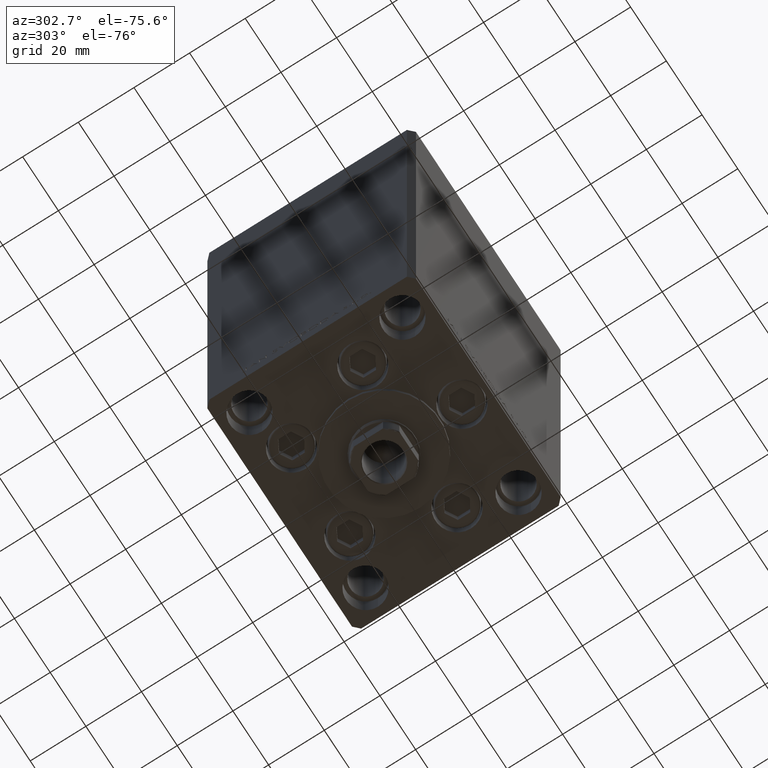
[diagram: clean part render]
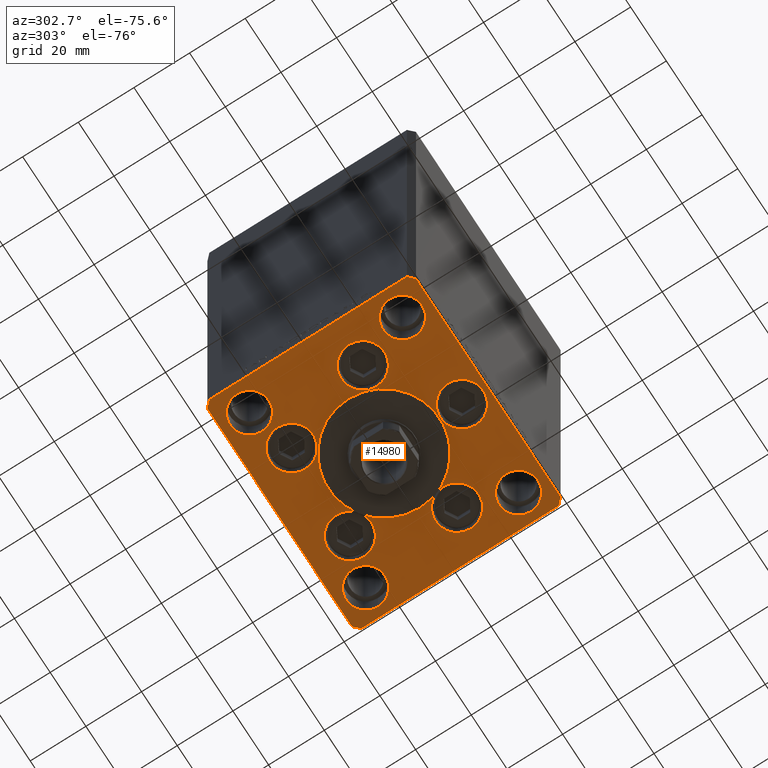
[diagram: same view with one face highlighted and labeled with its STEP entity id]
A machine part, auxiliary view. The second image highlights one B-rep face of the part: STEP entity #14980.
In plain terms, the highlighted planar face has unit normal (0, 0, -1).
Its self-contained STEP definition (entity closure, byte-faithful):
#356 = CIRCLE ( 'NONE', #43329, 7.750000000000000000 ) ;
#698 = CARTESIAN_POINT ( 'NONE',  ( -40.50000000000000000, 37.49999999999997158, 0.000000000000000000 ) ) ;
#1001 = AXIS2_PLACEMENT_3D ( 'NONE', #16255, #16506, #46876 ) ;
#1036 = ORIENTED_EDGE ( 'NONE', *, *, #20593, .F. ) ;
#1134 = CIRCLE ( 'NONE', #29794, 6.999999999999999112 ) ;
#1165 = EDGE_CURVE ( 'NONE', #1169, #23687, #14451, .T. ) ;
#1169 = VERTEX_POINT ( 'NONE', #18341 ) ;
#1642 = EDGE_CURVE ( 'NONE', #34296, #22308, #39171, .T. ) ;
#1661 = DIRECTION ( 'NONE',  ( 1.000000000000000000, 0.000000000000000000, 0.000000000000000000 ) ) ;
#1671 = EDGE_CURVE ( 'NONE', #28546, #29074, #45514, .T. ) ;
#1858 = LINE ( 'NONE', #2108, #31573 ) ;
#1912 = CARTESIAN_POINT ( 'NONE',  ( 32.50000000000000000, 27.49999999999999645, 0.000000000000000000 ) ) ;
#1974 = VERTEX_POINT ( 'NONE', #32973 ) ;
#2108 = CARTESIAN_POINT ( 'NONE',  ( -42.50000000000000711, 35.50000000000000000, 0.000000000000000000 ) ) ;
#2748 = DIRECTION ( 'NONE',  ( 1.000000000000000000, 0.000000000000000000, 0.000000000000000000 ) ) ;
#3086 = LINE ( 'NONE', #41675, #3211 ) ;
#3211 = VECTOR ( 'NONE', #7066, 1000.000000000000000 ) ;
#3472 = CARTESIAN_POINT ( 'NONE',  ( -32.50000000000000000, -27.50000000000000355, 0.000000000000000000 ) ) ;
#3995 = CARTESIAN_POINT ( 'NONE',  ( -42.50000000000000000, -35.50000000000004263, 0.000000000000000000 ) ) ;
#4089 = ORIENTED_EDGE ( 'NONE', *, *, #45117, .F. ) ;
#4255 = ORIENTED_EDGE ( 'NONE', *, *, #16487, .F. ) ;
#4271 = AXIS2_PLACEMENT_3D ( 'NONE', #18307, #23027, #30495 ) ;
#4290 = EDGE_CURVE ( 'NONE', #45163, #43109, #36307, .T. ) ;
#4315 = VECTOR ( 'NONE', #9255, 1000.000000000000000 ) ;
#4535 = EDGE_CURVE ( 'NONE', #1974, #34121, #28076, .T. ) ;
#4645 = VERTEX_POINT ( 'NONE', #11526 ) ;
#4926 = CARTESIAN_POINT ( 'NONE',  ( 0.000000000000000000, -28.00000000000000000, 0.000000000000000000 ) ) ;
#5023 = VECTOR ( 'NONE', #23163, 1000.000000000000000 ) ;
#5063 = CARTESIAN_POINT ( 'NONE',  ( 40.50000000000001421, -37.49999999999992184, 0.000000000000000000 ) ) ;
#5481 = CARTESIAN_POINT ( 'NONE',  ( 0.000000000000000000, 0.000000000000000000, 0.000000000000000000 ) ) ;
#5635 = VERTEX_POINT ( 'NONE', #31462 ) ;
#5731 = DIRECTION ( 'NONE',  ( 1.000000000000000000, 0.000000000000000000, 0.000000000000000000 ) ) ;
#5808 = VERTEX_POINT ( 'NONE', #11959 ) ;
#5924 = CIRCLE ( 'NONE', #20254, 6.999999999999999112 ) ;
#6092 = VERTEX_POINT ( 'NONE', #25124 ) ;
#7066 = DIRECTION ( 'NONE',  ( -0.7071067811865524577, 0.7071067811865426878, 0.000000000000000000 ) ) ;
#7155 = CARTESIAN_POINT ( 'NONE',  ( -40.50000000000000000, 37.49999999999997158, 0.000000000000000000 ) ) ;
#7370 = DIRECTION ( 'NONE',  ( 0.000000000000000000, 0.000000000000000000, 1.000000000000000000 ) ) ;
#7618 = DIRECTION ( 'NONE',  ( 0.000000000000000000, 0.000000000000000000, 1.000000000000000000 ) ) ;
#8025 = EDGE_LOOP ( 'NONE', ( #31431, #15460 ) ) ;
#8128 = DIRECTION ( 'NONE',  ( -0.7071067811865536790, -0.7071067811865414665, 0.000000000000000000 ) ) ;
#9089 = VERTEX_POINT ( 'NONE', #16302 ) ;
#9103 = VECTOR ( 'NONE', #47894, 1000.000000000000000 ) ;
#9255 = DIRECTION ( 'NONE',  ( 0.7071067811865487940, -0.7071067811865463515, 0.000000000000000000 ) ) ;
#9332 = DIRECTION ( 'NONE',  ( 9.773090005503134168E-17, -1.000000000000000000, 0.000000000000000000 ) ) ;
#9341 = CARTESIAN_POINT ( 'NONE',  ( 32.50000000000000000, -27.50000000000000355, 0.000000000000000000 ) ) ;
#9474 = CARTESIAN_POINT ( 'NONE',  ( 0.000000000000000000, -28.00000000000000000, 0.000000000000000000 ) ) ;
#10237 = AXIS2_PLACEMENT_3D ( 'NONE', #4926, #39805, #12655 ) ;
#10437 = FACE_BOUND ( 'NONE', #40850, .T. ) ;
#10528 = CIRCLE ( 'NONE', #1001, 7.750000000000000000 ) ;
#10736 = EDGE_CURVE ( 'NONE', #6092, #9089, #5924, .T. ) ;
#10870 = CARTESIAN_POINT ( 'NONE',  ( 8.572913342905442491, 22.74999999999999289, 0.000000000000000000 ) ) ;
#10893 = VERTEX_POINT ( 'NONE', #26299 ) ;
#11192 = VERTEX_POINT ( 'NONE', #34873 ) ;
#11370 = DIRECTION ( 'NONE',  ( 0.000000000000000000, 0.000000000000000000, 1.000000000000000000 ) ) ;
#11526 = CARTESIAN_POINT ( 'NONE',  ( 20.00000000000000000, -4.489600305612522259E-15, 0.000000000000000000 ) ) ;
#11597 = DIRECTION ( 'NONE',  ( 1.000000000000000000, 0.000000000000000000, 0.000000000000000000 ) ) ;
#11645 = ORIENTED_EDGE ( 'NONE', *, *, #37109, .F. ) ;
#11958 = ORIENTED_EDGE ( 'NONE', *, *, #10736, .F. ) ;
#11959 = CARTESIAN_POINT ( 'NONE',  ( 42.50000000000000711, -35.49999999999992895, 0.000000000000000000 ) ) ;
#11988 = EDGE_CURVE ( 'NONE', #13707, #5635, #356, .T. ) ;
#12088 = CIRCLE ( 'NONE', #35970, 7.750000000000000000 ) ;
#12301 = EDGE_LOOP ( 'NONE', ( #48106, #4089 ) ) ;
#12615 = CIRCLE ( 'NONE', #10237, 7.750000000000000000 ) ;
#12652 = ORIENTED_EDGE ( 'NONE', *, *, #42414, .T. ) ;
#12655 = DIRECTION ( 'NONE',  ( 1.000000000000000000, 0.000000000000000000, 0.000000000000000000 ) ) ;
#12712 = DIRECTION ( 'NONE',  ( 1.000000000000000000, 0.000000000000000000, 0.000000000000000000 ) ) ;
#12810 = ORIENTED_EDGE ( 'NONE', *, *, #39430, .F. ) ;
#13382 = CARTESIAN_POINT ( 'NONE',  ( 39.50000000000000000, 27.49999999999999645, 0.000000000000000000 ) ) ;
#13444 = CIRCLE ( 'NONE', #44430, 7.750000000000000000 ) ;
#13707 = VERTEX_POINT ( 'NONE', #31931 ) ;
#13712 = AXIS2_PLACEMENT_3D ( 'NONE', #48472, #7618, #11597 ) ;
#13944 = FACE_BOUND ( 'NONE', #18005, .T. ) ;
#14068 = CARTESIAN_POINT ( 'NONE',  ( 18.64865316429777664, -9.333333333333328596, 0.000000000000000000 ) ) ;
#14264 = CARTESIAN_POINT ( 'NONE',  ( 40.50000000000000711, 37.50000000000000711, 0.000000000000000000 ) ) ;
#14340 = CARTESIAN_POINT ( 'NONE',  ( 24.07291334290544071, 22.74999999999999289, 0.000000000000000000 ) ) ;
#14451 = CIRCLE ( 'NONE', #13712, 7.750000000000000000 ) ;
#14980 = ADVANCED_FACE ( 'NONE', ( #21658, #24678, #44556, #13944, #29376, #47812, #47572, #29141, #25175, #10437, #44324 ), #40357, .T. ) ;
#15460 = ORIENTED_EDGE ( 'NONE', *, *, #1671, .F. ) ;
#15498 = VERTEX_POINT ( 'NONE', #18000 ) ;
#15954 = CARTESIAN_POINT ( 'NONE',  ( -24.07291334290544071, 22.74999999999999289, 0.000000000000000000 ) ) ;
#16023 = LINE ( 'NONE', #5063, #43930 ) ;
#16255 = CARTESIAN_POINT ( 'NONE',  ( 16.32291334290544071, 22.74999999999999289, 0.000000000000000000 ) ) ;
#16276 = DIRECTION ( 'NONE',  ( 1.000000000000000000, 0.000000000000000000, 0.000000000000000000 ) ) ;
#16302 = CARTESIAN_POINT ( 'NONE',  ( -39.50000000000000000, -27.50000000000000355, 0.000000000000000000 ) ) ;
#16487 = EDGE_CURVE ( 'NONE', #22308, #34296, #25161, .T. ) ;
#16506 = DIRECTION ( 'NONE',  ( 0.000000000000000000, 0.000000000000000000, 1.000000000000000000 ) ) ;
#16648 = DIRECTION ( 'NONE',  ( 0.000000000000000000, 0.000000000000000000, 1.000000000000000000 ) ) ;
#16657 = ORIENTED_EDGE ( 'NONE', *, *, #46316, .T. ) ;
#16916 = EDGE_CURVE ( 'NONE', #5808, #40444, #32604, .T. ) ;
#17280 = LINE ( 'NONE', #14264, #9103 ) ;
#17394 = ORIENTED_EDGE ( 'NONE', *, *, #23101, .F. ) ;
#18000 = CARTESIAN_POINT ( 'NONE',  ( 7.750000000000000000, -28.00000000000000000, 0.000000000000000000 ) ) ;
#18005 = EDGE_LOOP ( 'NONE', ( #34060, #22861 ) ) ;
#18224 = CIRCLE ( 'NONE', #20631, 7.750000000000000000 ) ;
#18307 = CARTESIAN_POINT ( 'NONE',  ( -26.39865316429777664, -9.333333333333330373, 0.000000000000000000 ) ) ;
#18341 = CARTESIAN_POINT ( 'NONE',  ( 34.14865316429777664, -9.333333333333330373, 0.000000000000000000 ) ) ;
#18710 = EDGE_CURVE ( 'NONE', #44543, #35850, #1858, .T. ) ;
#18945 = AXIS2_PLACEMENT_3D ( 'NONE', #49198, #7370, #30768 ) ;
#19756 = DIRECTION ( 'NONE',  ( 0.000000000000000000, 0.000000000000000000, 1.000000000000000000 ) ) ;
#19996 = CARTESIAN_POINT ( 'NONE',  ( -25.50000000000000355, 27.50000000000000711, 0.000000000000000000 ) ) ;
#20254 = AXIS2_PLACEMENT_3D ( 'NONE', #33520, #32795, #36540 ) ;
#20593 = EDGE_CURVE ( 'NONE', #26044, #4645, #33235, .T. ) ;
#20631 = AXIS2_PLACEMENT_3D ( 'NONE', #29149, #47583, #48304 ) ;
#20724 = AXIS2_PLACEMENT_3D ( 'NONE', #9474, #28893, #12712 ) ;
#21295 = DIRECTION ( 'NONE',  ( 1.000000000000000000, 0.000000000000000000, 0.000000000000000000 ) ) ;
#21399 = CARTESIAN_POINT ( 'NONE',  ( 42.50000000000000711, -35.49999999999992895, 0.000000000000000000 ) ) ;
#21453 = CARTESIAN_POINT ( 'NONE',  ( -42.50000000000000000, -35.50000000000004263, 0.000000000000000000 ) ) ;
#21658 = FACE_BOUND ( 'NONE', #31813, .T. ) ;
#21861 = EDGE_CURVE ( 'NONE', #29074, #28546, #40425, .T. ) ;
#21932 = DIRECTION ( 'NONE',  ( 0.000000000000000000, 0.000000000000000000, 1.000000000000000000 ) ) ;
#22308 = VERTEX_POINT ( 'NONE', #19996 ) ;
#22537 = EDGE_CURVE ( 'NONE', #15498, #11192, #12615, .T. ) ;
#22717 = CARTESIAN_POINT ( 'NONE',  ( -42.50000000000000711, 35.50000000000000000, 0.000000000000000000 ) ) ;
#22861 = ORIENTED_EDGE ( 'NONE', *, *, #34739, .F. ) ;
#23027 = DIRECTION ( 'NONE',  ( 0.000000000000000000, 0.000000000000000000, 1.000000000000000000 ) ) ;
#23101 = EDGE_CURVE ( 'NONE', #34984, #27313, #13444, .T. ) ;
#23163 = DIRECTION ( 'NONE',  ( 1.000000000000000000, 1.370645709413773283E-15, 0.000000000000000000 ) ) ;
#23424 = AXIS2_PLACEMENT_3D ( 'NONE', #38959, #11370, #24528 ) ;
#23434 = EDGE_CURVE ( 'NONE', #24187, #34588, #18224, .T. ) ;
#23592 = EDGE_LOOP ( 'NONE', ( #43100, #24873, #28435, #49032, #44781, #16657, #12652, #33254 ) ) ;
#23656 = VERTEX_POINT ( 'NONE', #698 ) ;
#23687 = VERTEX_POINT ( 'NONE', #14068 ) ;
#23715 = DIRECTION ( 'NONE',  ( 0.000000000000000000, 0.000000000000000000, 1.000000000000000000 ) ) ;
#23770 = CARTESIAN_POINT ( 'NONE',  ( -40.50000000000000711, -37.50000000000003553, 0.000000000000000000 ) ) ;
#23910 = ORIENTED_EDGE ( 'NONE', *, *, #23434, .F. ) ;
#24187 = VERTEX_POINT ( 'NONE', #15954 ) ;
#24255 = DIRECTION ( 'NONE',  ( 0.000000000000000000, 0.000000000000000000, 1.000000000000000000 ) ) ;
#24406 = CARTESIAN_POINT ( 'NONE',  ( -39.50000000000000000, 27.50000000000000711, 0.000000000000000000 ) ) ;
#24528 = DIRECTION ( 'NONE',  ( 1.000000000000000000, 0.000000000000000000, 0.000000000000000000 ) ) ;
#24678 = FACE_BOUND ( 'NONE', #31947, .T. ) ;
#24873 = ORIENTED_EDGE ( 'NONE', *, *, #4290, .T. ) ;
#25046 = CARTESIAN_POINT ( 'NONE',  ( -26.39865316429777664, -9.333333333333330373, 0.000000000000000000 ) ) ;
#25124 = CARTESIAN_POINT ( 'NONE',  ( -25.50000000000000355, -27.50000000000000355, 0.000000000000000000 ) ) ;
#25161 = CIRCLE ( 'NONE', #33878, 6.999999999999999112 ) ;
#25175 = FACE_BOUND ( 'NONE', #33889, .T. ) ;
#25177 = CARTESIAN_POINT ( 'NONE',  ( -8.572913342905440715, 22.74999999999999289, 0.000000000000000000 ) ) ;
#26044 = VERTEX_POINT ( 'NONE', #47655 ) ;
#26212 = EDGE_LOOP ( 'NONE', ( #12810, #17394 ) ) ;
#26299 = CARTESIAN_POINT ( 'NONE',  ( 40.50000000000000711, 37.50000000000000711, 0.000000000000000000 ) ) ;
#27313 = VERTEX_POINT ( 'NONE', #14340 ) ;
#27696 = DIRECTION ( 'NONE',  ( 1.000000000000000000, 0.000000000000000000, 0.000000000000000000 ) ) ;
#27976 = DIRECTION ( 'NONE',  ( 0.7071067811865474617, 0.7071067811865474617, 0.000000000000000000 ) ) ;
#28076 = CIRCLE ( 'NONE', #28117, 6.999999999999999112 ) ;
#28097 = DIRECTION ( 'NONE',  ( 1.000000000000000000, 0.000000000000000000, 0.000000000000000000 ) ) ;
#28117 = AXIS2_PLACEMENT_3D ( 'NONE', #9341, #43467, #47439 ) ;
#28394 = ORIENTED_EDGE ( 'NONE', *, *, #46250, .F. ) ;
#28435 = ORIENTED_EDGE ( 'NONE', *, *, #35543, .T. ) ;
#28476 = CARTESIAN_POINT ( 'NONE',  ( 16.32291334290544071, 22.74999999999999289, 0.000000000000000000 ) ) ;
#28546 = VERTEX_POINT ( 'NONE', #33459 ) ;
#28564 = DIRECTION ( 'NONE',  ( 1.000000000000000000, 0.000000000000000000, 0.000000000000000000 ) ) ;
#28893 = DIRECTION ( 'NONE',  ( 0.000000000000000000, 0.000000000000000000, 1.000000000000000000 ) ) ;
#28897 = CIRCLE ( 'NONE', #37635, 7.750000000000000000 ) ;
#29074 = VERTEX_POINT ( 'NONE', #13382 ) ;
#29141 = FACE_BOUND ( 'NONE', #36758, .T. ) ;
#29149 = CARTESIAN_POINT ( 'NONE',  ( -16.32291334290544071, 22.74999999999999289, 0.000000000000000000 ) ) ;
#29376 = FACE_BOUND ( 'NONE', #45129, .T. ) ;
#29794 = AXIS2_PLACEMENT_3D ( 'NONE', #3472, #21932, #2748 ) ;
#30333 = EDGE_CURVE ( 'NONE', #40444, #10893, #3086, .T. ) ;
#30408 = AXIS2_PLACEMENT_3D ( 'NONE', #43009, #32544, #1661 ) ;
#30495 = DIRECTION ( 'NONE',  ( 1.000000000000000000, 0.000000000000000000, 0.000000000000000000 ) ) ;
#30637 = VECTOR ( 'NONE', #8128, 1000.000000000000000 ) ;
#30768 = DIRECTION ( 'NONE',  ( 1.000000000000000000, 0.000000000000000000, 0.000000000000000000 ) ) ;
#30830 = EDGE_CURVE ( 'NONE', #11192, #15498, #36616, .T. ) ;
#30917 = ORIENTED_EDGE ( 'NONE', *, *, #22537, .F. ) ;
#31039 = LINE ( 'NONE', #7155, #30637 ) ;
#31431 = ORIENTED_EDGE ( 'NONE', *, *, #21861, .F. ) ;
#31462 = CARTESIAN_POINT ( 'NONE',  ( -34.14865316429777664, -9.333333333333328596, 0.000000000000000000 ) ) ;
#31499 = VECTOR ( 'NONE', #47547, 1000.000000000000000 ) ;
#31573 = VECTOR ( 'NONE', #9332, 1000.000000000000000 ) ;
#31790 = CARTESIAN_POINT ( 'NONE',  ( -16.32291334290544071, 22.74999999999999289, 0.000000000000000000 ) ) ;
#31813 = EDGE_LOOP ( 'NONE', ( #1036, #28394 ) ) ;
#31931 = CARTESIAN_POINT ( 'NONE',  ( -18.64865316429777664, -9.333333333333330373, 0.000000000000000000 ) ) ;
#31947 = EDGE_LOOP ( 'NONE', ( #11645, #23910 ) ) ;
#32390 = DIRECTION ( 'NONE',  ( -0.000000000000000000, 0.000000000000000000, 1.000000000000000000 ) ) ;
#32544 = DIRECTION ( 'NONE',  ( 0.000000000000000000, 0.000000000000000000, 1.000000000000000000 ) ) ;
#32604 = LINE ( 'NONE', #21399, #31499 ) ;
#32795 = DIRECTION ( 'NONE',  ( 0.000000000000000000, 0.000000000000000000, 1.000000000000000000 ) ) ;
#32871 = AXIS2_PLACEMENT_3D ( 'NONE', #38691, #19756, #5731 ) ;
#32973 = CARTESIAN_POINT ( 'NONE',  ( 39.50000000000000000, -27.50000000000000355, 0.000000000000000000 ) ) ;
#33057 = ORIENTED_EDGE ( 'NONE', *, *, #45703, .F. ) ;
#33235 = CIRCLE ( 'NONE', #35630, 20.00000000000000000 ) ;
#33254 = ORIENTED_EDGE ( 'NONE', *, *, #18710, .T. ) ;
#33378 = CARTESIAN_POINT ( 'NONE',  ( 25.50000000000000355, -27.50000000000000355, 0.000000000000000000 ) ) ;
#33403 = ORIENTED_EDGE ( 'NONE', *, *, #4535, .F. ) ;
#33459 = CARTESIAN_POINT ( 'NONE',  ( 25.50000000000000355, 27.49999999999999645, 0.000000000000000000 ) ) ;
#33520 = CARTESIAN_POINT ( 'NONE',  ( -32.50000000000000000, -27.50000000000000355, 0.000000000000000000 ) ) ;
#33597 = CARTESIAN_POINT ( 'NONE',  ( 26.39865316429777664, -9.333333333333330373, 0.000000000000000000 ) ) ;
#33850 = DIRECTION ( 'NONE',  ( 0.000000000000000000, 0.000000000000000000, 1.000000000000000000 ) ) ;
#33878 = AXIS2_PLACEMENT_3D ( 'NONE', #38903, #23715, #27696 ) ;
#33889 = EDGE_LOOP ( 'NONE', ( #11958, #33057 ) ) ;
#34060 = ORIENTED_EDGE ( 'NONE', *, *, #1165, .F. ) ;
#34121 = VERTEX_POINT ( 'NONE', #33378 ) ;
#34296 = VERTEX_POINT ( 'NONE', #24406 ) ;
#34588 = VERTEX_POINT ( 'NONE', #25177 ) ;
#34739 = EDGE_CURVE ( 'NONE', #23687, #1169, #12088, .T. ) ;
#34873 = CARTESIAN_POINT ( 'NONE',  ( -7.750000000000000000, -28.00000000000000000, 0.000000000000000000 ) ) ;
#34984 = VERTEX_POINT ( 'NONE', #10870 ) ;
#35291 = DIRECTION ( 'NONE',  ( 0.000000000000000000, 0.000000000000000000, 1.000000000000000000 ) ) ;
#35543 = EDGE_CURVE ( 'NONE', #43109, #5808, #16023, .T. ) ;
#35630 = AXIS2_PLACEMENT_3D ( 'NONE', #43540, #16648, #28097 ) ;
#35807 = CARTESIAN_POINT ( 'NONE',  ( -40.50000000000000711, -37.50000000000003553, 0.000000000000000000 ) ) ;
#35850 = VERTEX_POINT ( 'NONE', #3995 ) ;
#35970 = AXIS2_PLACEMENT_3D ( 'NONE', #33597, #33850, #38313 ) ;
#36129 = DIRECTION ( 'NONE',  ( 1.000000000000000000, 0.000000000000000000, 0.000000000000000000 ) ) ;
#36164 = ORIENTED_EDGE ( 'NONE', *, *, #37219, .F. ) ;
#36307 = LINE ( 'NONE', #35807, #5023 ) ;
#36540 = DIRECTION ( 'NONE',  ( 1.000000000000000000, 0.000000000000000000, 0.000000000000000000 ) ) ;
#36616 = CIRCLE ( 'NONE', #20724, 7.750000000000000000 ) ;
#36758 = EDGE_LOOP ( 'NONE', ( #4255, #49218 ) ) ;
#37055 = AXIS2_PLACEMENT_3D ( 'NONE', #5481, #32390, #36129 ) ;
#37109 = EDGE_CURVE ( 'NONE', #34588, #24187, #28897, .T. ) ;
#37219 = EDGE_CURVE ( 'NONE', #34121, #1974, #42378, .T. ) ;
#37528 = CARTESIAN_POINT ( 'NONE',  ( 40.50000000000001421, -37.49999999999992184, 0.000000000000000000 ) ) ;
#37635 = AXIS2_PLACEMENT_3D ( 'NONE', #31790, #43922, #42998 ) ;
#38313 = DIRECTION ( 'NONE',  ( 1.000000000000000000, 0.000000000000000000, 0.000000000000000000 ) ) ;
#38691 = CARTESIAN_POINT ( 'NONE',  ( 32.50000000000000000, -27.50000000000000355, 0.000000000000000000 ) ) ;
#38903 = CARTESIAN_POINT ( 'NONE',  ( -32.50000000000000000, 27.50000000000000711, 0.000000000000000000 ) ) ;
#38959 = CARTESIAN_POINT ( 'NONE',  ( 0.000000000000000000, -6.938893903907228378E-15, 0.000000000000000000 ) ) ;
#39171 = CIRCLE ( 'NONE', #30408, 6.999999999999999112 ) ;
#39297 = CIRCLE ( 'NONE', #4271, 7.750000000000000000 ) ;
#39430 = EDGE_CURVE ( 'NONE', #27313, #34984, #10528, .T. ) ;
#39805 = DIRECTION ( 'NONE',  ( 0.000000000000000000, 0.000000000000000000, 1.000000000000000000 ) ) ;
#40357 = PLANE ( 'NONE',  #37055 ) ;
#40425 = CIRCLE ( 'NONE', #18945, 6.999999999999999112 ) ;
#40444 = VERTEX_POINT ( 'NONE', #44566 ) ;
#40850 = EDGE_LOOP ( 'NONE', ( #33403, #36164 ) ) ;
#41675 = CARTESIAN_POINT ( 'NONE',  ( 42.50000000000001421, 35.50000000000002132, 0.000000000000000000 ) ) ;
#42378 = CIRCLE ( 'NONE', #32871, 6.999999999999999112 ) ;
#42414 = EDGE_CURVE ( 'NONE', #23656, #44543, #31039, .T. ) ;
#42998 = DIRECTION ( 'NONE',  ( 1.000000000000000000, 0.000000000000000000, 0.000000000000000000 ) ) ;
#43009 = CARTESIAN_POINT ( 'NONE',  ( -32.50000000000000000, 27.50000000000000711, 0.000000000000000000 ) ) ;
#43100 = ORIENTED_EDGE ( 'NONE', *, *, #46661, .T. ) ;
#43109 = VERTEX_POINT ( 'NONE', #37528 ) ;
#43329 = AXIS2_PLACEMENT_3D ( 'NONE', #25046, #44671, #21295 ) ;
#43467 = DIRECTION ( 'NONE',  ( 0.000000000000000000, 0.000000000000000000, 1.000000000000000000 ) ) ;
#43540 = CARTESIAN_POINT ( 'NONE',  ( 0.000000000000000000, -6.938893903907228378E-15, 0.000000000000000000 ) ) ;
#43922 = DIRECTION ( 'NONE',  ( 0.000000000000000000, 0.000000000000000000, 1.000000000000000000 ) ) ;
#43930 = VECTOR ( 'NONE', #27976, 1000.000000000000114 ) ;
#43933 = AXIS2_PLACEMENT_3D ( 'NONE', #1912, #35291, #28564 ) ;
#44110 = LINE ( 'NONE', #21453, #4315 ) ;
#44324 = FACE_OUTER_BOUND ( 'NONE', #23592, .T. ) ;
#44430 = AXIS2_PLACEMENT_3D ( 'NONE', #28476, #24255, #16276 ) ;
#44543 = VERTEX_POINT ( 'NONE', #22717 ) ;
#44556 = FACE_BOUND ( 'NONE', #26212, .T. ) ;
#44566 = CARTESIAN_POINT ( 'NONE',  ( 42.50000000000001421, 35.50000000000002132, 0.000000000000000000 ) ) ;
#44671 = DIRECTION ( 'NONE',  ( 0.000000000000000000, 0.000000000000000000, 1.000000000000000000 ) ) ;
#44781 = ORIENTED_EDGE ( 'NONE', *, *, #30333, .T. ) ;
#45117 = EDGE_CURVE ( 'NONE', #5635, #13707, #39297, .T. ) ;
#45129 = EDGE_LOOP ( 'NONE', ( #30917, #47003 ) ) ;
#45163 = VERTEX_POINT ( 'NONE', #23770 ) ;
#45514 = CIRCLE ( 'NONE', #43933, 6.999999999999999112 ) ;
#45703 = EDGE_CURVE ( 'NONE', #9089, #6092, #1134, .T. ) ;
#46250 = EDGE_CURVE ( 'NONE', #4645, #26044, #47291, .T. ) ;
#46316 = EDGE_CURVE ( 'NONE', #10893, #23656, #17280, .T. ) ;
#46661 = EDGE_CURVE ( 'NONE', #35850, #45163, #44110, .T. ) ;
#46876 = DIRECTION ( 'NONE',  ( 1.000000000000000000, 0.000000000000000000, 0.000000000000000000 ) ) ;
#47003 = ORIENTED_EDGE ( 'NONE', *, *, #30830, .F. ) ;
#47291 = CIRCLE ( 'NONE', #23424, 20.00000000000000000 ) ;
#47439 = DIRECTION ( 'NONE',  ( 1.000000000000000000, 0.000000000000000000, 0.000000000000000000 ) ) ;
#47547 = DIRECTION ( 'NONE',  ( 9.773090005503145261E-17, 1.000000000000000000, 0.000000000000000000 ) ) ;
#47572 = FACE_BOUND ( 'NONE', #8025, .T. ) ;
#47583 = DIRECTION ( 'NONE',  ( 0.000000000000000000, 0.000000000000000000, 1.000000000000000000 ) ) ;
#47655 = CARTESIAN_POINT ( 'NONE',  ( -20.00000000000000000, -6.938893903907228378E-15, 0.000000000000000000 ) ) ;
#47812 = FACE_BOUND ( 'NONE', #12301, .T. ) ;
#47894 = DIRECTION ( 'NONE',  ( -1.000000000000000000, -4.283267841918041508E-16, 0.000000000000000000 ) ) ;
#48106 = ORIENTED_EDGE ( 'NONE', *, *, #11988, .F. ) ;
#48304 = DIRECTION ( 'NONE',  ( 1.000000000000000000, 0.000000000000000000, 0.000000000000000000 ) ) ;
#48472 = CARTESIAN_POINT ( 'NONE',  ( 26.39865316429777664, -9.333333333333330373, 0.000000000000000000 ) ) ;
#49032 = ORIENTED_EDGE ( 'NONE', *, *, #16916, .T. ) ;
#49198 = CARTESIAN_POINT ( 'NONE',  ( 32.50000000000000000, 27.49999999999999645, 0.000000000000000000 ) ) ;
#49218 = ORIENTED_EDGE ( 'NONE', *, *, #1642, .F. ) ;